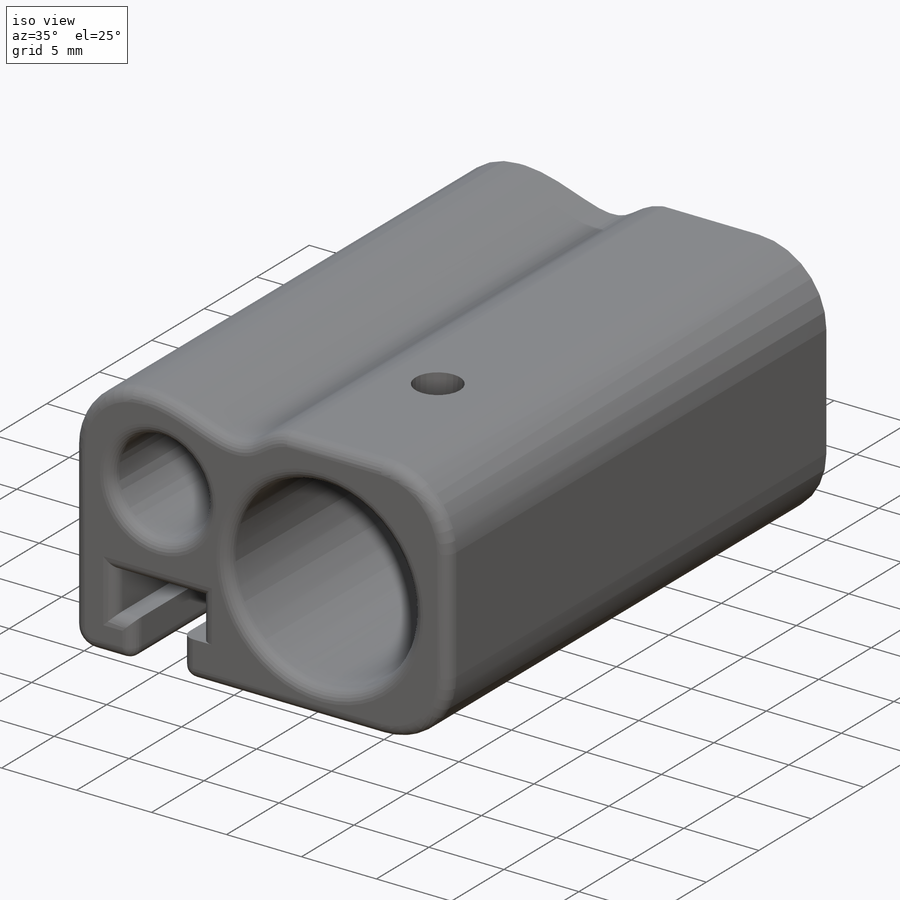
[diagram: iso view]
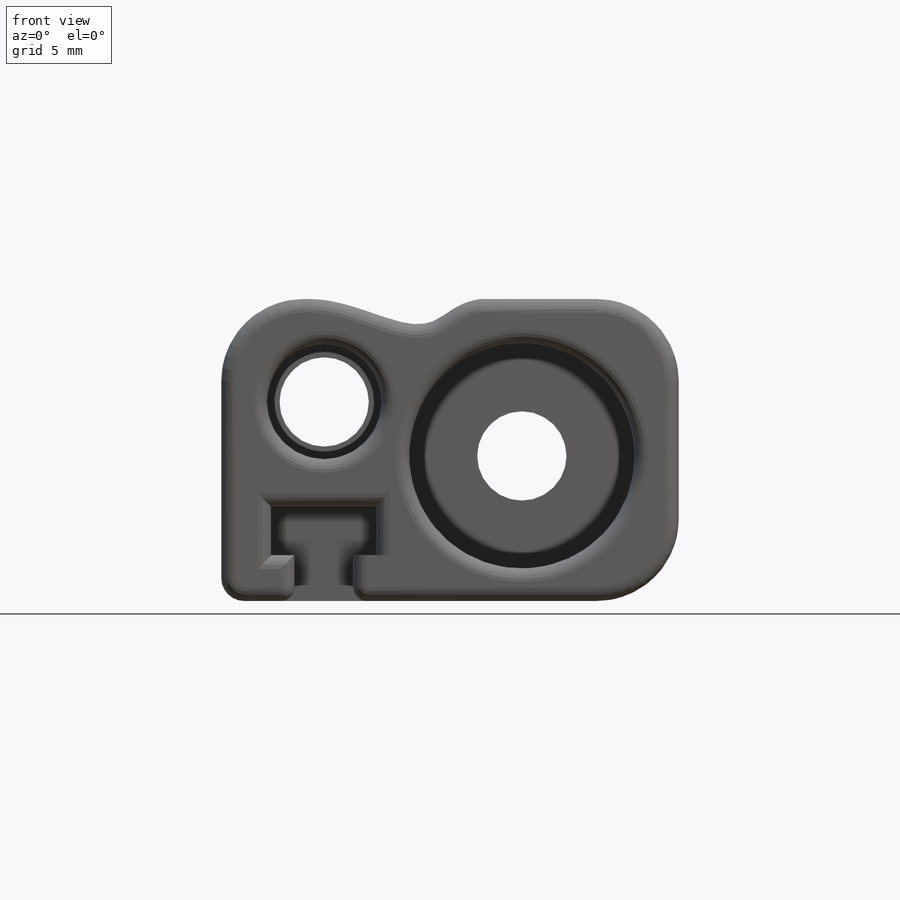
[diagram: front view]
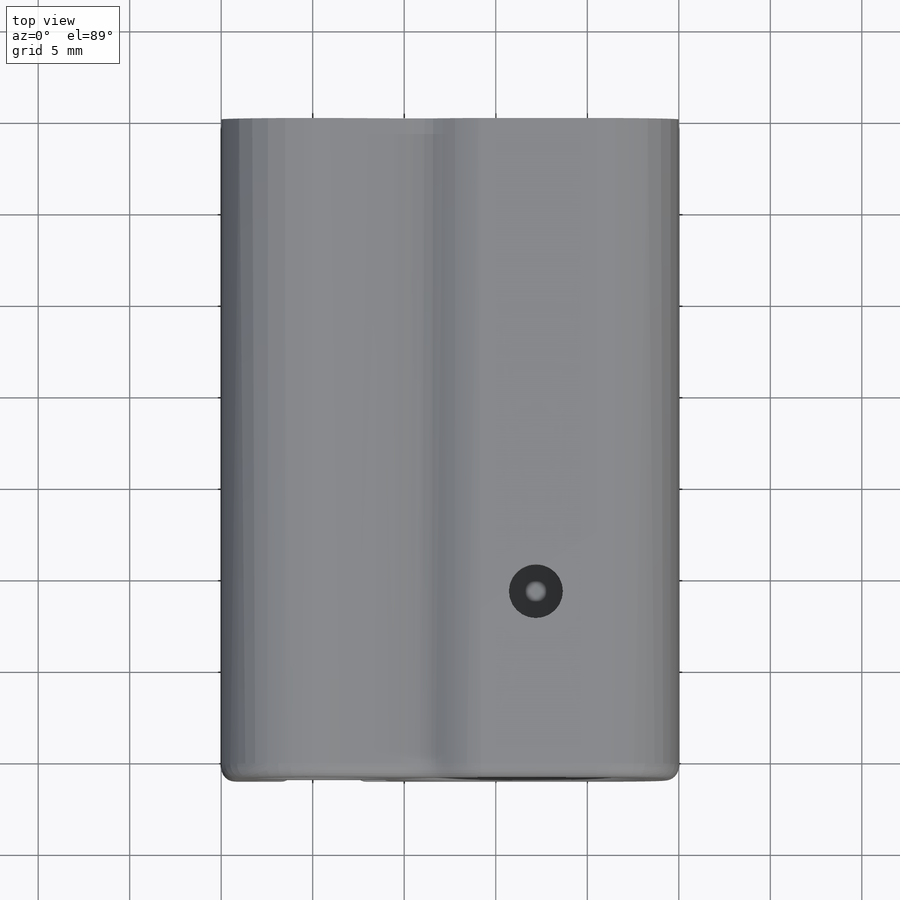
[diagram: top view]
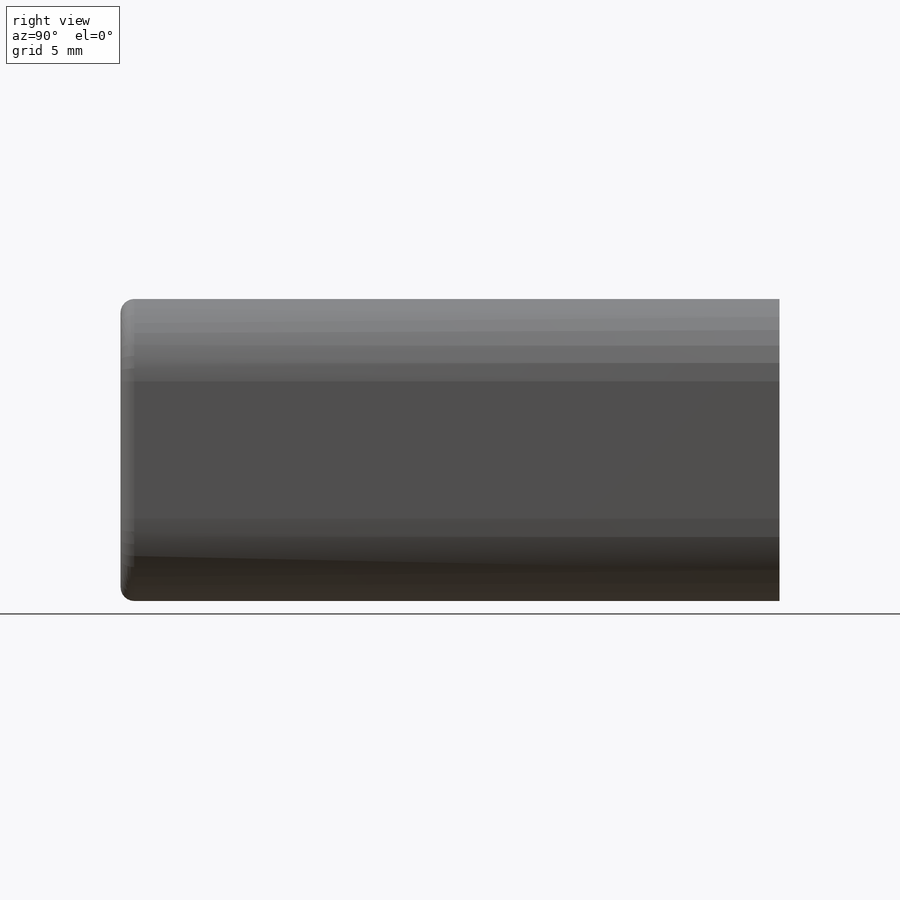
[diagram: right view]
SOLIDWORKS PART (.sldprt)
format: sldprt  version: not decoded by parser v0  size: 430,080 bytes
history: native  units: mm
features: fillet x6, sketch x4, cut_extrude x3, material x1, extrude x1, plane x1, mirror x1 (+11 scaffold rows collapsed)
feature tree (28):
  scaffold x11  (default folders/planes/origin — collapsed)
  material  "Material <not specified>"
  sketch  "Sketch1"  dims[c1.D3=12.15mm c1.D4=4.88mm c1.D5=4.88mm c1.D6=4.88mm c2.D5=6.25mm c2.D6=4.88mm c2.D7=6.25mm c2.D8=6.25mm c2.D9=12.15mm c2.D10=12.15mm c2.D11=4.5mm c2.D1=25.0mm c2.D2=16.5mm c3.D7=2.5mm c3.D8=2.5mm c3.D9=2.5mm c3.D10=2.5mm]
  extrude  "Boss-Extrude4"  Depth=36mm
  sketch  "Sketch3"  dims[D1=6.125mm]
  cut_extrude  "Cut-Extrude1"  Depth=32mm
  sketch  "Sketch4"  dims[D1=2.5mm D2=2.65mm D3=4.0mm D4=5.75mm D5=3.2mm]
  cut_extrude  "Cut-Extrude2"  Depth=8.5mm
  plane  "Plane1"
  mirror  "Mirror1"
  fillet  "Fillet2"  Radius=0.75mm
  fillet  "Fillet3"  Radius=0.75mm
  fillet  "Fillet4"  Radius=0.75mm
  fillet  "Fillet5"  Radius=0.75mm
  fillet  "Fillet6"  Radius=1.25mm
  fillet  "Fillet7"  Radius=0.75mm
  sketch  "Sketch8"  dims[D1=~1.476541mm]
  cut_extrude  "Cut-Extrude3"  Depth=10mm
decode coverage: 14 of 15 modeling features carry decoded parameters
note: ~ marks probable driven/reference dimensions
note: suppression state not decoded; provenance and decode notes live in map.json
